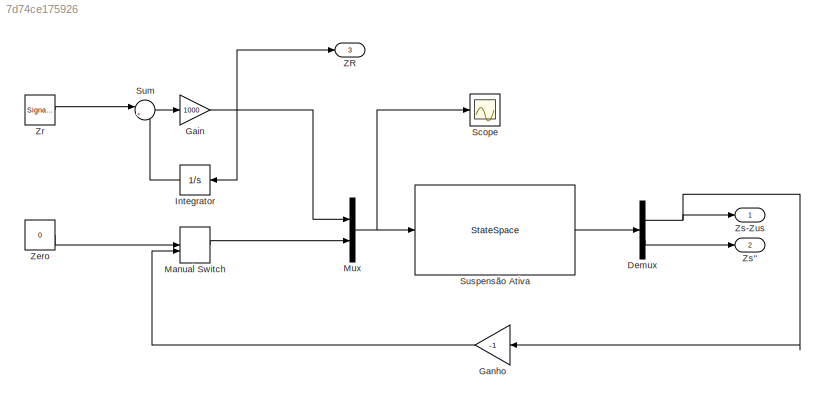
MODEL slx_7d74ce175926
KIND model
CONFIG AbsTol = auto
CONFIG FixedStep = auto
CONFIG MaxStep = auto
CONFIG MinStep = auto
CONFIG RelTol = 1e-3
CONFIG SampleTimeConstraint = Unconstrained
CONFIG Solver = ode23t
CONFIG SolverMode = Auto
CONFIG SolverName = ode23t
CONFIG StartTime = 0.0
CONFIG StopTime = 10.0
BLOCK [Demux] Demux
  DisplayOption = bar
  Outputs = 2
  Ports = [1, 2]
BLOCK [Gain] Gain
  Gain = 1000
  OutDataTypeStr = Inherit: Inherit via internal rule
  ParamDataTypeStr = Inherit: Inherit via internal rule
  SaturateOnIntegerOverflow = off
BLOCK [Gain] Ganho
  Gain = -1
  OutDataTypeStr = Inherit: Inherit via internal rule
  ParamDataTypeStr = Inherit: Inherit via internal rule
  SaturateOnIntegerOverflow = off
BLOCK [Integrator] Integrator
  Ports = [1, 1]
BLOCK [ManualSwitch] Manual Switch
BLOCK [Mux] Mux
  DisplayOption = bar
  Inputs = 2
  Ports = [2, 1]
BLOCK [Scope] Scope
  Floating = off
  NumInputPorts = 1
  Ports = [1]
BLOCK [Sum] Sum
  IconShape = round
  InputSameDT = off
  Inputs = |+-
  OutDataTypeStr = Inherit: Inherit via internal rule
  Ports = [2, 1]
  SaturateOnIntegerOverflow = off
BLOCK [StateSpace] Suspensão Ativa
  A = [0 1 0 -1;-367.346938775510 -3.06122448979592 0 3.06122448979592;0 0 0 1;900 7.50000000000000 -1250 -12.5000000000000]
  B = [0 0;0 0.408163265306122;-1 0;5 -1]
  C = [1 0 0 0;-367.346938775510 -3.06122448979592 0 3.06122448979592]
  D = [0 0;0 0.408163265306122]
  Ports = [1, 1]
  X0 = 0
BLOCK [Outport] ZR
  IconDisplay = Port number
  Port = 3
BLOCK [Constant] Zero
  Value = 0
BLOCK [SignalGenerator] Zr
  Amplitude = -0.01
  Frequency = 0.3
  Ports = [0, 1]
  WaveForm = square
BLOCK [Outport] Zs''
  IconDisplay = Port number
  Port = 2
BLOCK [Outport] Zs-Zus
  IconDisplay = Port number
NET Demux:1 -> Ganho:1, Zs-Zus:1
LINE Demux:2 -> Zs'':1
NET Gain:1 -> Integrator:1, Mux:1, ZR:1
LINE Ganho:1 -> Manual Switch:2
LINE Integrator:1 -> Sum:2
LINE Manual Switch:1 -> Mux:2
NET Mux:1 -> Scope:1, Suspensão Ativa:1
LINE Sum:1 -> Gain:1
LINE Suspensão Ativa:1 -> Demux:1
LINE Zero:1 -> Manual Switch:1
LINE Zr:1 -> Sum:1
note: NET lines group one-source signal fan-out (src -> all destinations, sorted); 1:1 wires keep LINE
